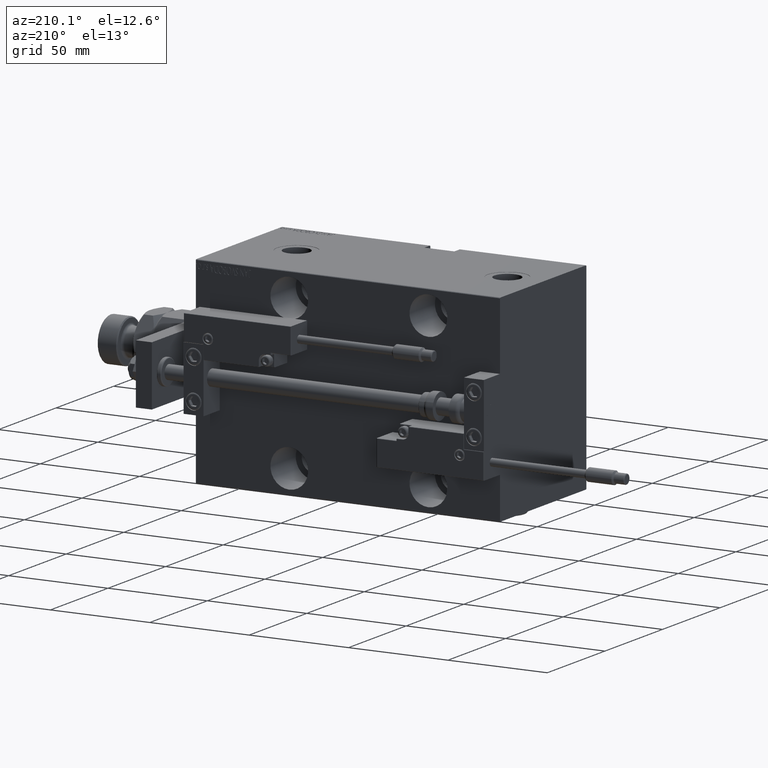
[diagram: clean part render]
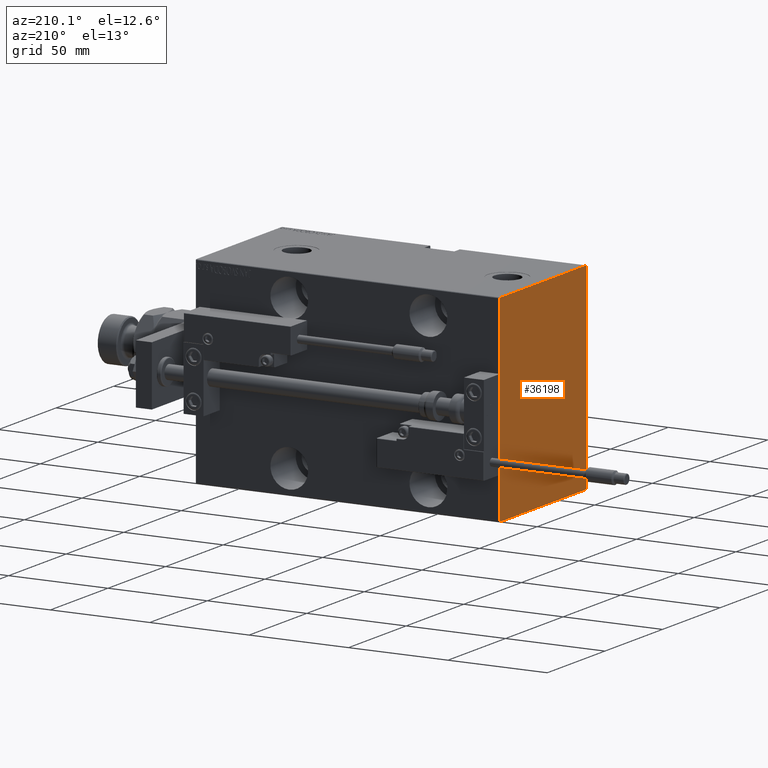
[diagram: same view with one face highlighted and labeled with its STEP entity id]
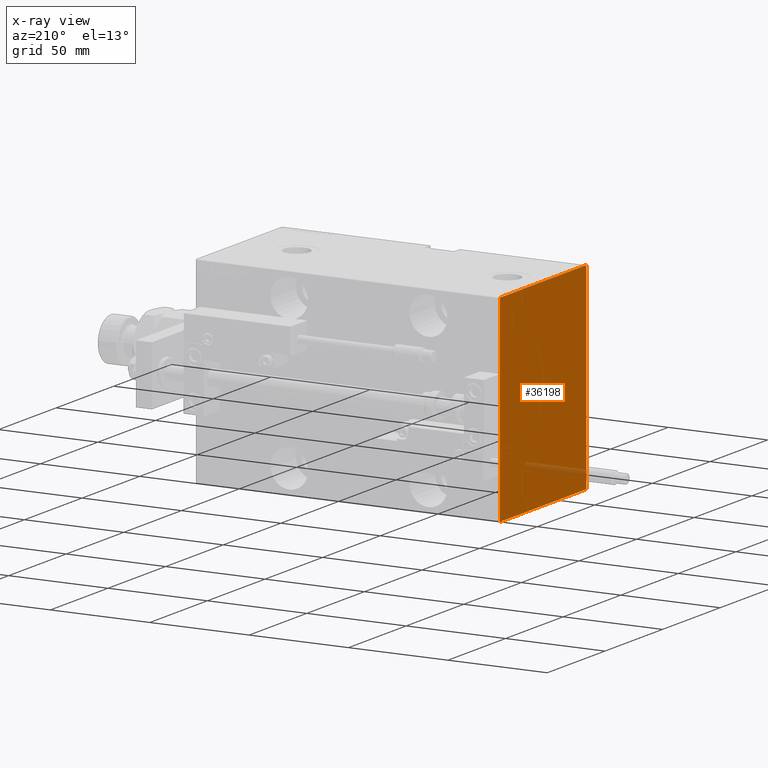
[diagram: x-ray of the same camera — body ghosted, the highlighted face saturated]
A machine part, auxiliary view. The second image highlights one B-rep face of the part: STEP entity #36198.
The next image is the same camera in x-ray: the body ghosted, the highlighted face saturated — about 3% of this face is hidden behind the body in this view.
In plain terms, the highlighted planar face has unit normal (-1, 0, 0).
Its self-contained STEP definition (entity closure, byte-faithful):
#1667 = EDGE_LOOP ( 'NONE', ( #14740, #42747, #33847, #23947, #18552, #27423, #37511, #28412 ) ) ;
#2914 = PLANE ( 'NONE',  #33955 ) ;
#5282 = EDGE_CURVE ( 'NONE', #43741, #20778, #10498, .T. ) ;
#5388 = CARTESIAN_POINT ( 'NONE',  ( 153.0000000000000000, 37.19999999999996732, 50.00000000000001421 ) ) ;
#6389 = VECTOR ( 'NONE', #39231, 1000.000000000000000 ) ;
#9136 = VERTEX_POINT ( 'NONE', #31112 ) ;
#9865 = LINE ( 'NONE', #51104, #6389 ) ;
#9969 = DIRECTION ( 'NONE',  ( 0.000000000000000000, 1.000000000000000000, 9.251858538542970348E-17 ) ) ;
#10498 = LINE ( 'NONE', #19140, #47528 ) ;
#11651 = DIRECTION ( 'NONE',  ( 0.000000000000000000, -0.7071067811865556774, -0.7071067811865392461 ) ) ;
#12103 = EDGE_CURVE ( 'NONE', #48398, #18139, #25354, .T. ) ;
#13789 = EDGE_CURVE ( 'NONE', #20778, #48398, #9865, .T. ) ;
#13939 = VERTEX_POINT ( 'NONE', #20082 ) ;
#14740 = ORIENTED_EDGE ( 'NONE', *, *, #5282, .T. ) ;
#16038 = CARTESIAN_POINT ( 'NONE',  ( 153.0000000000000000, 37.50000000000000711, -49.70000000000001705 ) ) ;
#16212 = LINE ( 'NONE', #20002, #29969 ) ;
#18139 = VERTEX_POINT ( 'NONE', #42349 ) ;
#18329 = LINE ( 'NONE', #39075, #46328 ) ;
#18552 = ORIENTED_EDGE ( 'NONE', *, *, #23181, .T. ) ;
#19140 = CARTESIAN_POINT ( 'NONE',  ( 153.0000000000000000, -37.50000000000000000, -50.00000000000001421 ) ) ;
#19222 = EDGE_CURVE ( 'NONE', #47175, #43741, #41352, .T. ) ;
#19321 = DIRECTION ( 'NONE',  ( -0.000000000000000000, -0.7071067811865556774, 0.7071067811865393571 ) ) ;
#20002 = CARTESIAN_POINT ( 'NONE',  ( 153.0000000000000000, -43.59999999999956088, 43.60000000000057696 ) ) ;
#20082 = CARTESIAN_POINT ( 'NONE',  ( 153.0000000000000000, -37.50000000000000000, 49.69999999999998153 ) ) ;
#20123 = VECTOR ( 'NONE', #49862, 1000.000000000000000 ) ;
#20778 = VERTEX_POINT ( 'NONE', #29873 ) ;
#23122 = FACE_OUTER_BOUND ( 'NONE', #1667, .T. ) ;
#23181 = EDGE_CURVE ( 'NONE', #50208, #9136, #40394, .T. ) ;
#23947 = ORIENTED_EDGE ( 'NONE', *, *, #38313, .T. ) ;
#25081 = EDGE_CURVE ( 'NONE', #13939, #47175, #18329, .T. ) ;
#25354 = LINE ( 'NONE', #38256, #20123 ) ;
#25750 = EDGE_CURVE ( 'NONE', #9136, #13939, #16212, .T. ) ;
#26907 = CARTESIAN_POINT ( 'NONE',  ( 153.0000000000000000, 0.000000000000000000, 0.000000000000000000 ) ) ;
#27423 = ORIENTED_EDGE ( 'NONE', *, *, #25750, .T. ) ;
#28278 = DIRECTION ( 'NONE',  ( 0.000000000000000000, -1.000000000000000000, -1.850371707708594563E-16 ) ) ;
#28412 = ORIENTED_EDGE ( 'NONE', *, *, #19222, .T. ) ;
#29873 = CARTESIAN_POINT ( 'NONE',  ( 153.0000000000000000, 37.20000000000004547, -50.00000000000000711 ) ) ;
#29969 = VECTOR ( 'NONE', #11651, 1000.000000000000114 ) ;
#31112 = CARTESIAN_POINT ( 'NONE',  ( 153.0000000000000000, -37.19999999999996732, 50.00000000000000000 ) ) ;
#31715 = LINE ( 'NONE', #40071, #52984 ) ;
#32472 = VECTOR ( 'NONE', #28278, 1000.000000000000000 ) ;
#33525 = DIRECTION ( 'NONE',  ( -0.000000000000000000, 0.7071067811865149322, -0.7071067811865802133 ) ) ;
#33847 = ORIENTED_EDGE ( 'NONE', *, *, #12103, .T. ) ;
#33955 = AXIS2_PLACEMENT_3D ( 'NONE', #26907, #35246, #34972 ) ;
#34972 = DIRECTION ( 'NONE',  ( 0.000000000000000000, 0.000000000000000000, -1.000000000000000000 ) ) ;
#35246 = DIRECTION ( 'NONE',  ( 1.000000000000000000, 0.000000000000000000, 0.000000000000000000 ) ) ;
#36198 = ADVANCED_FACE ( 'NONE', ( #23122 ), #2914, .T. ) ;
#37402 = CARTESIAN_POINT ( 'NONE',  ( 153.0000000000000000, 37.49999999999999289, 50.00000000000001421 ) ) ;
#37511 = ORIENTED_EDGE ( 'NONE', *, *, #25081, .T. ) ;
#38256 = CARTESIAN_POINT ( 'NONE',  ( 153.0000000000000000, 37.50000000000000711, -50.00000000000000711 ) ) ;
#38313 = EDGE_CURVE ( 'NONE', #18139, #50208, #31715, .T. ) ;
#39075 = CARTESIAN_POINT ( 'NONE',  ( 153.0000000000000000, -37.50000000000000000, 50.00000000000000000 ) ) ;
#39231 = DIRECTION ( 'NONE',  ( -0.000000000000000000, 0.7071067811865066055, 0.7071067811865884289 ) ) ;
#40071 = CARTESIAN_POINT ( 'NONE',  ( 153.0000000000000000, 43.59999999999956088, 43.60000000000056986 ) ) ;
#40394 = LINE ( 'NONE', #37402, #32472 ) ;
#41352 = LINE ( 'NONE', #46194, #41779 ) ;
#41523 = CARTESIAN_POINT ( 'NONE',  ( 153.0000000000000000, -37.20000000000003126, -50.00000000000001421 ) ) ;
#41779 = VECTOR ( 'NONE', #33525, 999.9999999999998863 ) ;
#42091 = CARTESIAN_POINT ( 'NONE',  ( 153.0000000000000000, -37.50000000000000000, -49.70000000000002416 ) ) ;
#42349 = CARTESIAN_POINT ( 'NONE',  ( 153.0000000000000000, 37.49999999999999289, 49.70000000000000284 ) ) ;
#42613 = DIRECTION ( 'NONE',  ( 0.000000000000000000, 0.000000000000000000, -1.000000000000000000 ) ) ;
#42747 = ORIENTED_EDGE ( 'NONE', *, *, #13789, .T. ) ;
#43741 = VERTEX_POINT ( 'NONE', #41523 ) ;
#46194 = CARTESIAN_POINT ( 'NONE',  ( 153.0000000000000000, -43.60000000000174225, -43.59999999999771347 ) ) ;
#46328 = VECTOR ( 'NONE', #42613, 1000.000000000000000 ) ;
#47175 = VERTEX_POINT ( 'NONE', #42091 ) ;
#47528 = VECTOR ( 'NONE', #9969, 1000.000000000000000 ) ;
#48398 = VERTEX_POINT ( 'NONE', #16038 ) ;
#49862 = DIRECTION ( 'NONE',  ( 0.000000000000000000, -1.387778780781445182E-16, 1.000000000000000000 ) ) ;
#50208 = VERTEX_POINT ( 'NONE', #5388 ) ;
#51104 = CARTESIAN_POINT ( 'NONE',  ( 153.0000000000000000, 43.60000000000217568, -43.59999999999713083 ) ) ;
#52984 = VECTOR ( 'NONE', #19321, 1000.000000000000114 ) ;